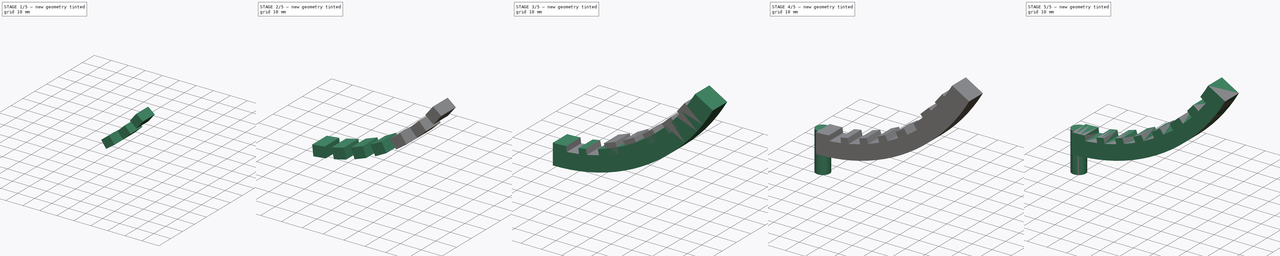
[diagram: build sequence overview — one tinted view per stage of 5, left to right]
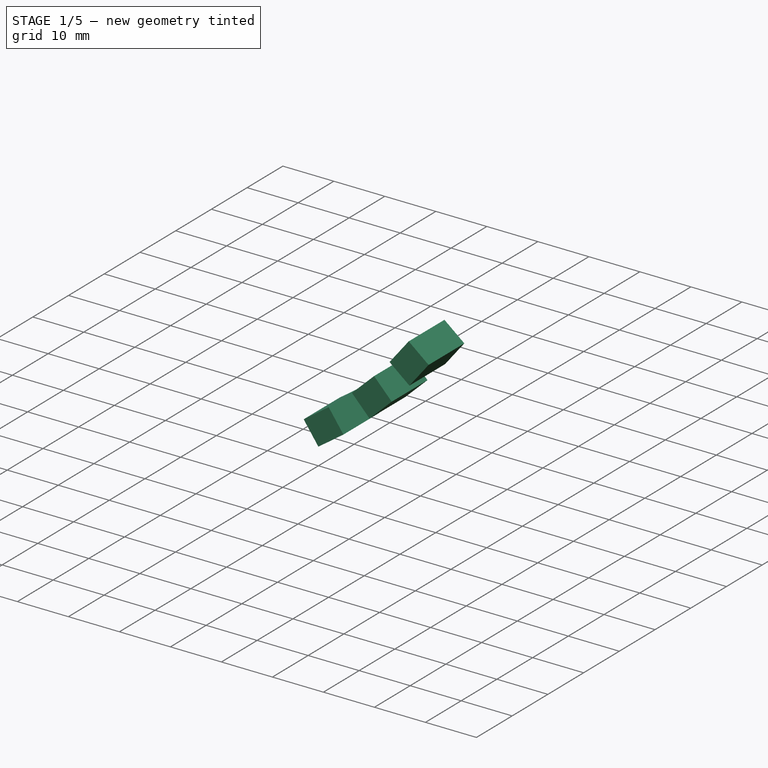
[diagram: stage 1 of 5 — iso view after this stage's code; geometry added in this stage tinted green]
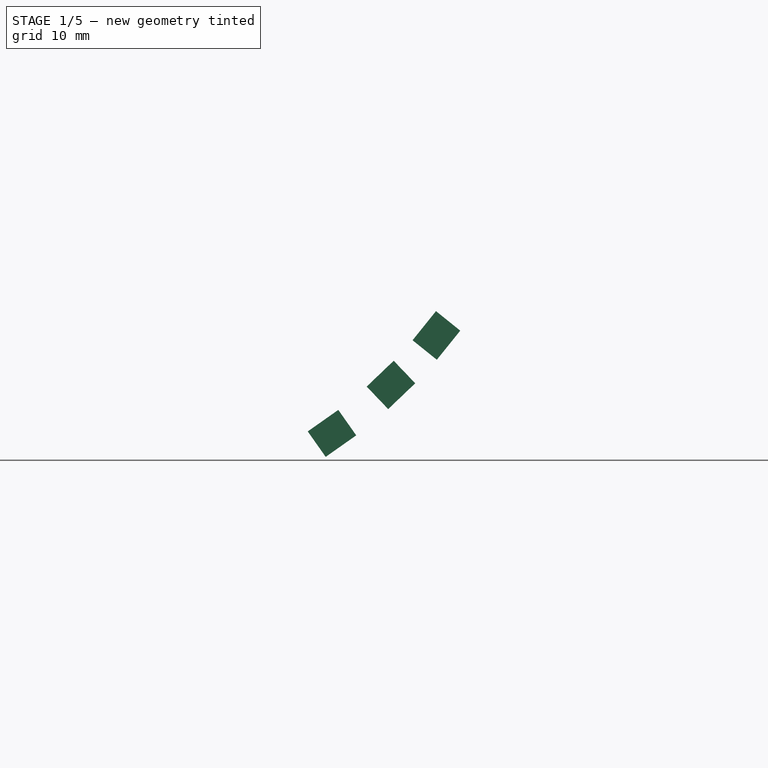
[diagram: stage 1 of 5 — front view after this stage's code; geometry added in this stage tinted green]
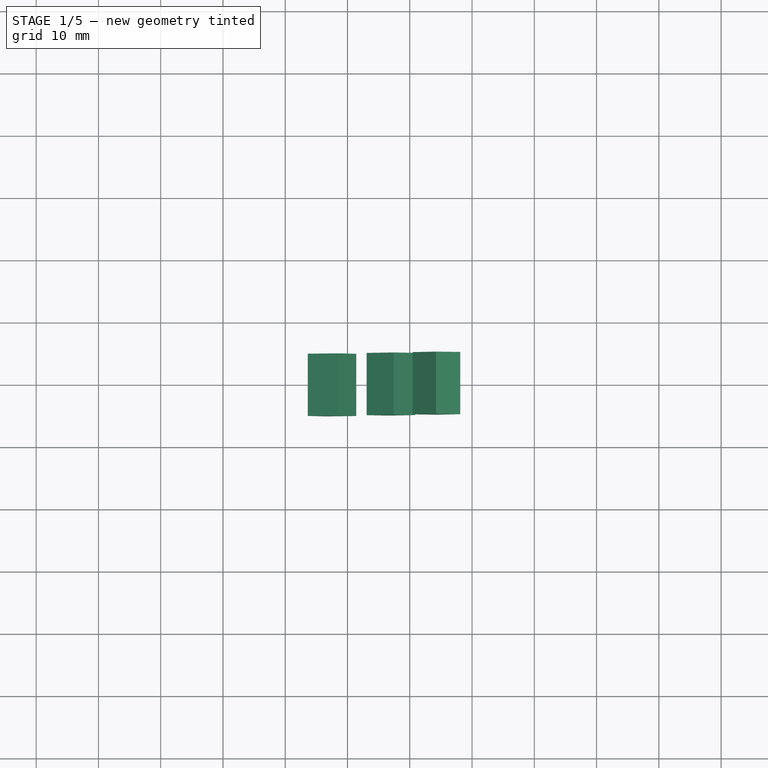
[diagram: stage 1 of 5 — top view after this stage's code; geometry added in this stage tinted green]
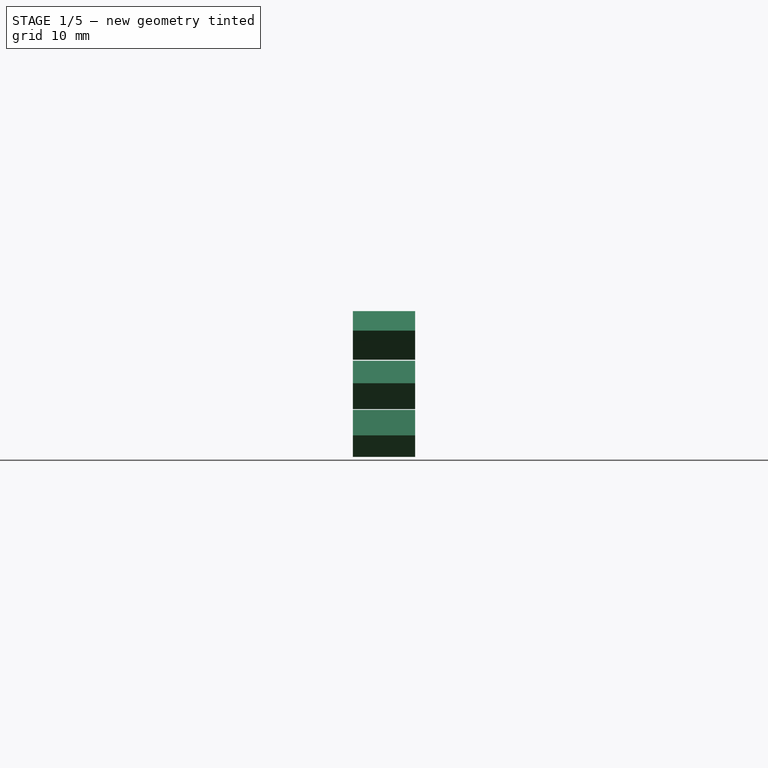
[diagram: stage 1 of 5 — right view after this stage's code; geometry added in this stage tinted green]
FCSTD DOCUMENT  (FreeCAD 0.18.4R)
Label: sketch_pcb_backup
License: All rights reserved
LicenseURL: http://en.wikipedia.org/wiki/All_rights_reserved
objects: Sketcher::SketchObject×11, Part::Extrusion×9, Part::Cut×7, Part::MultiFuse×1
note: 28 computed .brp shape members not serialized (recipe doc carries the construction recipe); baked Part::Feature solids carry a one-line shape summary decoded from their .brp

FEATURE [Sketcher::SketchObject] Sketch010
  sketch-geometry (4):
    g0: LineSegment StartX=-3 StartY=5 StartZ=0 EndX=3 EndY=5 EndZ=0
    g1: LineSegment StartX=3 StartY=5 StartZ=0 EndX=3 EndY=-5 EndZ=0
    g2: LineSegment StartX=3 StartY=-5 StartZ=0 EndX=-3 EndY=-5 EndZ=0
    g3: LineSegment StartX=-3 StartY=-5 StartZ=0 EndX=-3 EndY=5 EndZ=0
  constraints (12):
    c: Coincident(g0,g1)
    c: Coincident(g1,g2)
    c: Coincident(g2,g3)
    c: Coincident(g3,g0)
    c: Horizontal(g0)
    c: Horizontal(g2)
    c: Vertical(g1)
    c: Vertical(g3)
    c: Distance(g0) = 6
    c: Distance(g1) = 10
    c: Distance(g-1,g2) = 5
    c: Distance(g-1,g1) = 3
FEATURE [Part::Extrusion] Extrude011
  Base = -> Sketch010
  Dir = (0,0,1)
  DirMode = 2
  FaceMakerClass = Part::FaceMakerBullseye
  LengthFwd = 5
  LengthRev = 0
  Placement = pos=(47.5086,0,25.0524) rot=(0,-1,0;0.613658rad)
  Solid = true
  Symmetric = true
FEATURE [Sketcher::SketchObject] Sketch011
  sketch-geometry (4):
    g0: LineSegment StartX=-3 StartY=5 StartZ=0 EndX=3 EndY=5 EndZ=0
    g1: LineSegment StartX=3 StartY=5 StartZ=0 EndX=3 EndY=-5 EndZ=0
    g2: LineSegment StartX=3 StartY=-5 StartZ=0 EndX=-3 EndY=-5 EndZ=0
    g3: LineSegment StartX=-3 StartY=-5 StartZ=0 EndX=-3 EndY=5 EndZ=0
  constraints (12):
    c: Coincident(g0,g1)
    c: Coincident(g1,g2)
    c: Coincident(g2,g3)
    c: Coincident(g3,g0)
    c: Horizontal(g0)
    c: Horizontal(g2)
    c: Vertical(g1)
    c: Vertical(g3)
    c: Distance(g0) = 6
    c: Distance(g1) = 10
    c: Distance(g-1,g2) = 5
    c: Distance(g-1,g1) = 3
FEATURE [Part::Extrusion] Extrude012
  Base = -> Sketch011
  Dir = (0,0,1)
  DirMode = 2
  FaceMakerClass = Part::FaceMakerBullseye
  LengthFwd = 5
  LengthRev = 0
  Placement = pos=(56.977,0,32.8353) rot=(0,-1,0;0.76236rad)
  Solid = true
  Symmetric = true
FEATURE [Sketcher::SketchObject] Sketch012
  sketch-geometry (4):
    g0: LineSegment StartX=-3 StartY=5 StartZ=0 EndX=3 EndY=5 EndZ=0
    g1: LineSegment StartX=3 StartY=5 StartZ=0 EndX=3 EndY=-5 EndZ=0
    g2: LineSegment StartX=3 StartY=-5 StartZ=0 EndX=-3 EndY=-5 EndZ=0
    g3: LineSegment StartX=-3 StartY=-5 StartZ=0 EndX=-3 EndY=5 EndZ=0
  constraints (12):
    c: Coincident(g0,g1)
    c: Coincident(g1,g2)
    c: Coincident(g2,g3)
    c: Coincident(g3,g0)
    c: Horizontal(g0)
    c: Horizontal(g2)
    c: Vertical(g1)
    c: Vertical(g3)
    c: Distance(g0) = 6
    c: Distance(g1) = 10
    c: Distance(g-1,g2) = 5
    c: Distance(g-1,g1) = 3
FEATURE [Part::Extrusion] Extrude013
  Base = -> Sketch012
  Dir = (0,0,1)
  DirMode = 2
  FaceMakerClass = Part::FaceMakerBullseye
  LengthFwd = 5
  LengthRev = 0
  Placement = pos=(64.2773,0,40.7827) rot=(0,-1,0;0.89326rad)
  Solid = true
  Symmetric = true
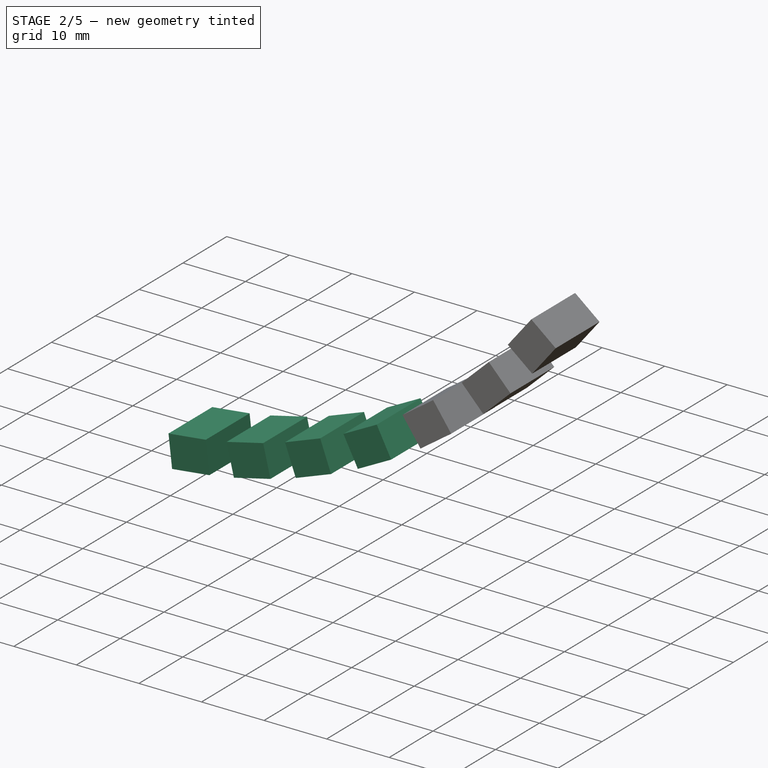
[diagram: stage 2 of 5 — iso view after this stage's code; geometry added in this stage tinted green]
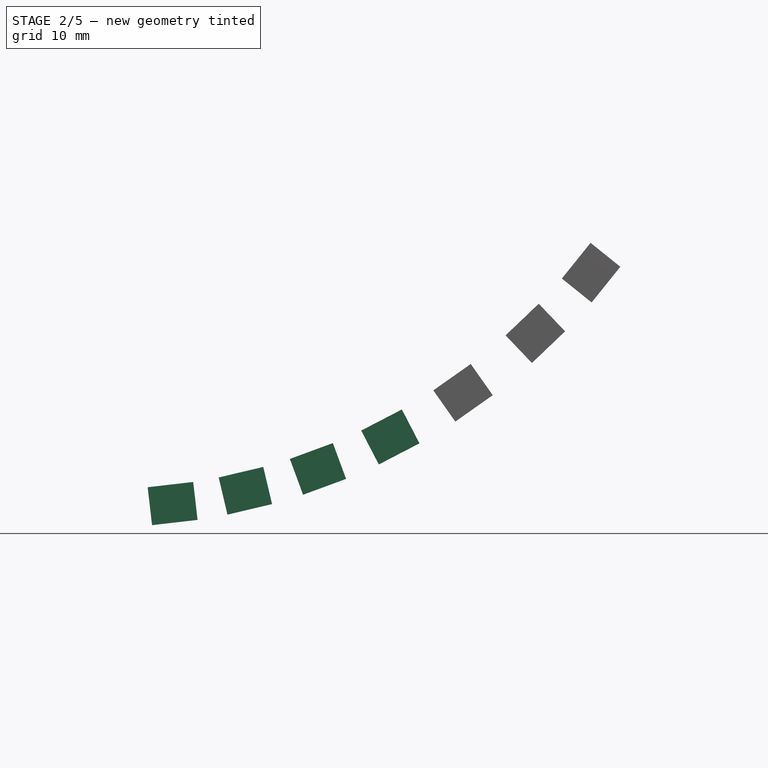
[diagram: stage 2 of 5 — front view after this stage's code; geometry added in this stage tinted green]
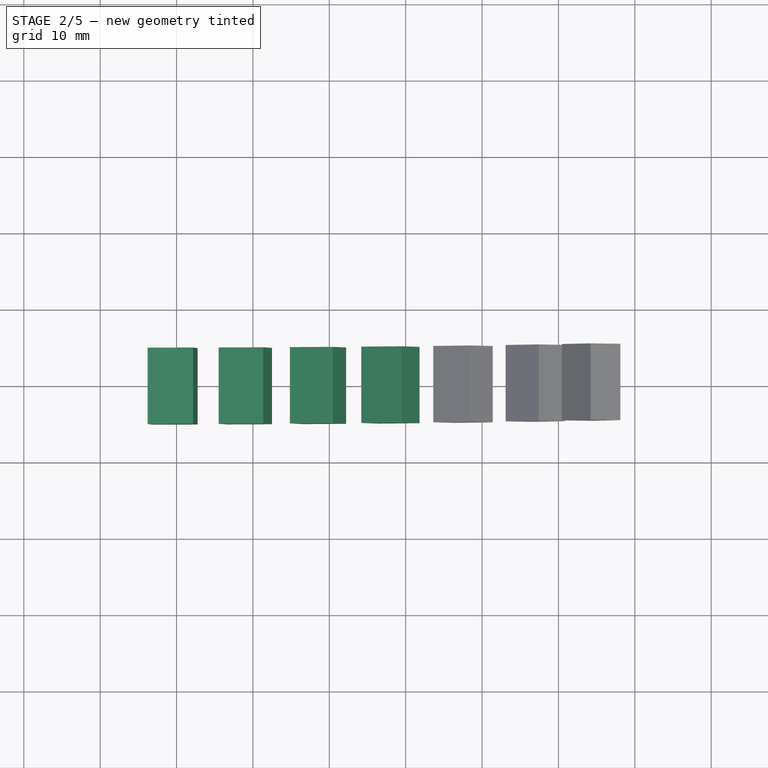
[diagram: stage 2 of 5 — top view after this stage's code; geometry added in this stage tinted green]
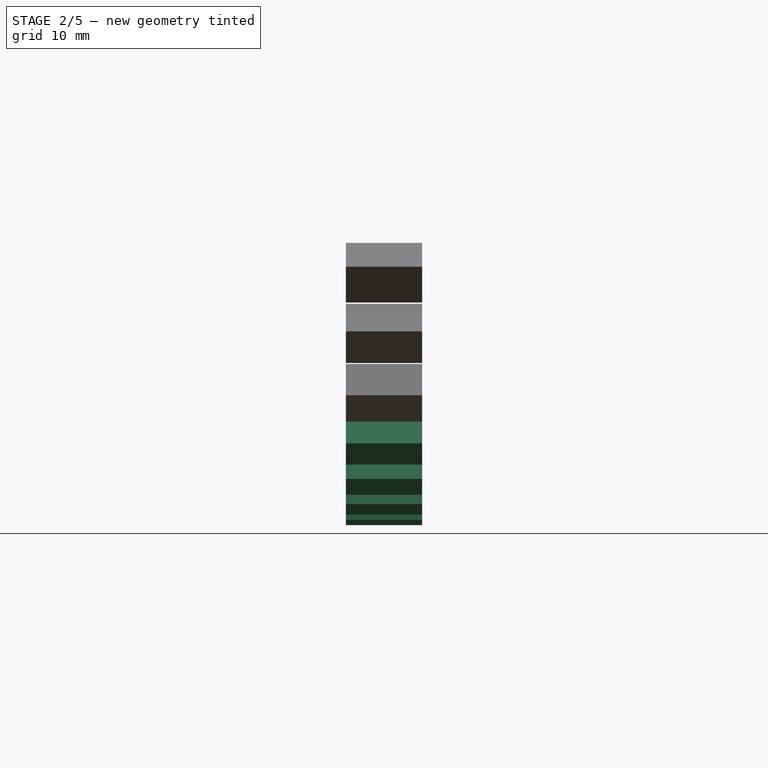
[diagram: stage 2 of 5 — right view after this stage's code; geometry added in this stage tinted green]
FEATURE [Sketcher::SketchObject] Sketch005
  sketch-geometry (4):
    g0: LineSegment StartX=-3 StartY=5 StartZ=0 EndX=3 EndY=5 EndZ=0
    g1: LineSegment StartX=3 StartY=5 StartZ=0 EndX=3 EndY=-5 EndZ=0
    g2: LineSegment StartX=3 StartY=-5 StartZ=0 EndX=-3 EndY=-5 EndZ=0
    g3: LineSegment StartX=-3 StartY=-5 StartZ=0 EndX=-3 EndY=5 EndZ=0
  constraints (12):
    c: Coincident(g0,g1)
    c: Coincident(g1,g2)
    c: Coincident(g2,g3)
    c: Coincident(g3,g0)
    c: Horizontal(g0)
    c: Horizontal(g2)
    c: Vertical(g1)
    c: Vertical(g3)
    c: Distance(g0) = 6
    c: Distance(g1) = 10
    c: Distance(g-1,g2) = 5
    c: Distance(g-1,g1) = 3
FEATURE [Part::Extrusion] Extrude006
  Base = -> Sketch005
  Dir = (0,0,1)
  DirMode = 2
  FaceMakerClass = Part::FaceMakerBullseye
  LengthFwd = 5
  LengthRev = 0
  Placement = pos=(9.48231,0,10.5467) rot=(0,-1,0;0.115192rad)
  Solid = true
  Symmetric = true
FEATURE [Sketcher::SketchObject] Sketch007
  sketch-geometry (4):
    g0: LineSegment StartX=-3 StartY=5 StartZ=0 EndX=3 EndY=5 EndZ=0
    g1: LineSegment StartX=3 StartY=5 StartZ=0 EndX=3 EndY=-5 EndZ=0
    g2: LineSegment StartX=3 StartY=-5 StartZ=0 EndX=-3 EndY=-5 EndZ=0
    g3: LineSegment StartX=-3 StartY=-5 StartZ=0 EndX=-3 EndY=5 EndZ=0
  constraints (12):
    c: Coincident(g0,g1)
    c: Coincident(g1,g2)
    c: Coincident(g2,g3)
    c: Coincident(g3,g0)
    c: Horizontal(g0)
    c: Horizontal(g2)
    c: Vertical(g1)
    c: Vertical(g3)
    c: Distance(g0) = 6
    c: Distance(g1) = 10
    c: Distance(g-1,g2) = 5
    c: Distance(g-1,g1) = 3
FEATURE [Part::Extrusion] Extrude008
  Base = -> Sketch007
  Dir = (0,0,1)
  DirMode = 2
  FaceMakerClass = Part::FaceMakerBullseye
  LengthFwd = 5
  LengthRev = 0
  Placement = pos=(19.0071,0,12.2194) rot=(0,-1,0;0.232478rad)
  Solid = true
  Symmetric = true
FEATURE [Sketcher::SketchObject] Sketch008
  sketch-geometry (4):
    g0: LineSegment StartX=-3 StartY=5 StartZ=0 EndX=3 EndY=5 EndZ=0
    g1: LineSegment StartX=3 StartY=5 StartZ=0 EndX=3 EndY=-5 EndZ=0
    g2: LineSegment StartX=3 StartY=-5 StartZ=0 EndX=-3 EndY=-5 EndZ=0
    g3: LineSegment StartX=-3 StartY=-5 StartZ=0 EndX=-3 EndY=5 EndZ=0
  constraints (12):
    c: Coincident(g0,g1)
    c: Coincident(g1,g2)
    c: Coincident(g2,g3)
    c: Coincident(g3,g0)
    c: Horizontal(g0)
    c: Horizontal(g2)
    c: Vertical(g1)
    c: Vertical(g3)
    c: Distance(g0) = 6
    c: Distance(g1) = 10
    c: Distance(g-1,g2) = 5
    c: Distance(g-1,g1) = 3
FEATURE [Part::Extrusion] Extrude009
  Base = -> Sketch008
  Dir = (0,0,1)
  DirMode = 2
  FaceMakerClass = Part::FaceMakerBullseye
  LengthFwd = 5
  LengthRev = 0
  Placement = pos=(28.5141,0,15.0843) rot=(0,-1,0;0.352906rad)
  Solid = true
  Symmetric = true
FEATURE [Sketcher::SketchObject] Sketch009
  sketch-geometry (4):
    g0: LineSegment StartX=-3 StartY=5 StartZ=0 EndX=3 EndY=5 EndZ=0
    g1: LineSegment StartX=3 StartY=5 StartZ=0 EndX=3 EndY=-5 EndZ=0
    g2: LineSegment StartX=3 StartY=-5 StartZ=0 EndX=-3 EndY=-5 EndZ=0
    g3: LineSegment StartX=-3 StartY=-5 StartZ=0 EndX=-3 EndY=5 EndZ=0
  constraints (12):
    c: Coincident(g0,g1)
    c: Coincident(g1,g2)
    c: Coincident(g2,g3)
    c: Coincident(g3,g0)
    c: Horizontal(g0)
    c: Horizontal(g2)
    c: Vertical(g1)
    c: Vertical(g3)
    c: Distance(g0) = 6
    c: Distance(g1) = 10
    c: Distance(g-1,g2) = 5
    c: Distance(g-1,g1) = 3
FEATURE [Part::Extrusion] Extrude010
  Base = -> Sketch009
  Dir = (0,0,1)
  DirMode = 2
  FaceMakerClass = Part::FaceMakerBullseye
  LengthFwd = 5
  LengthRev = 0
  Placement = pos=(37.992,0,19.2685) rot=(0,-1,0;0.478569rad)
  Solid = true
  Symmetric = true
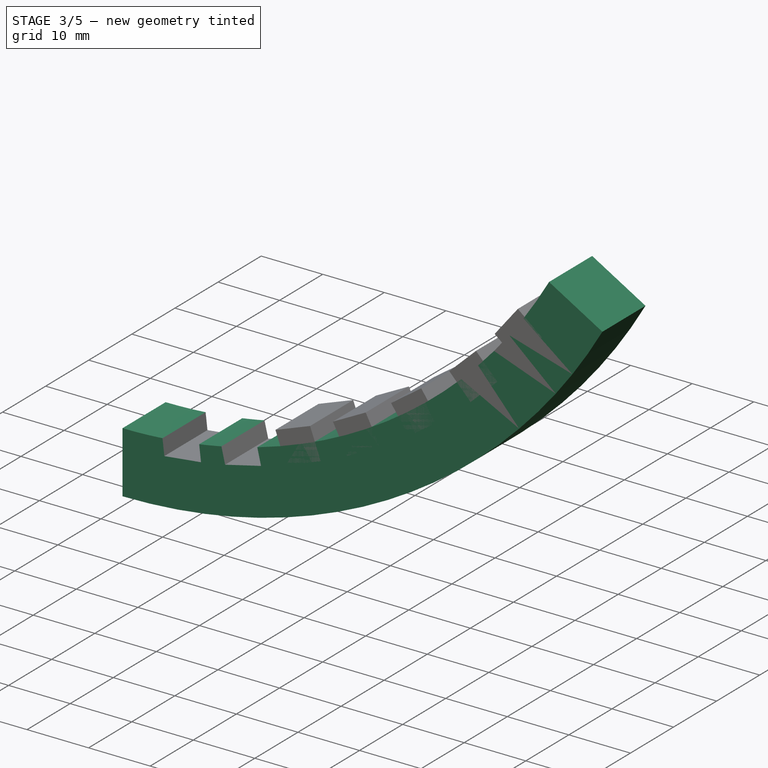
[diagram: stage 3 of 5 — iso view after this stage's code; geometry added in this stage tinted green]
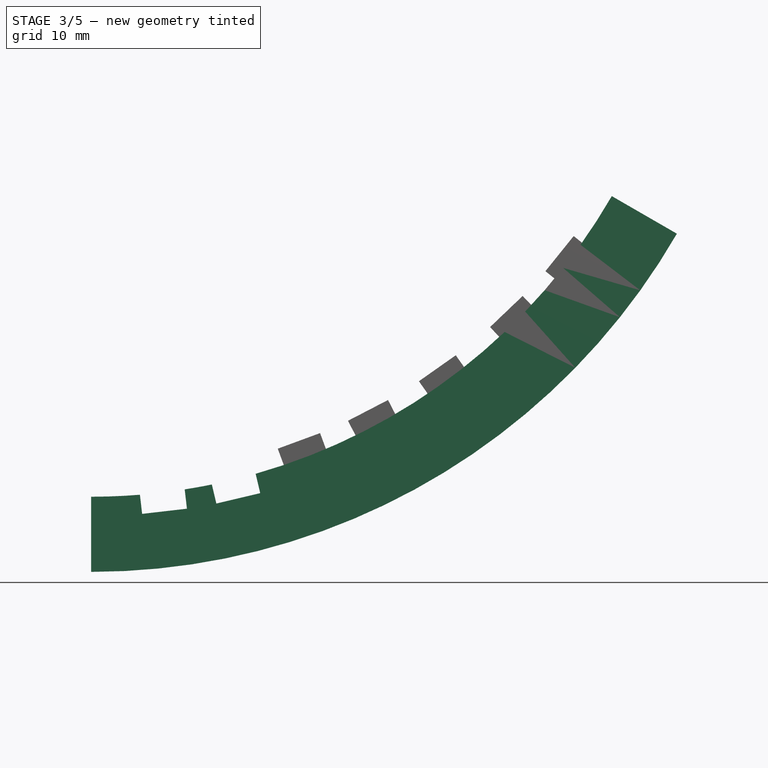
[diagram: stage 3 of 5 — front view after this stage's code; geometry added in this stage tinted green]
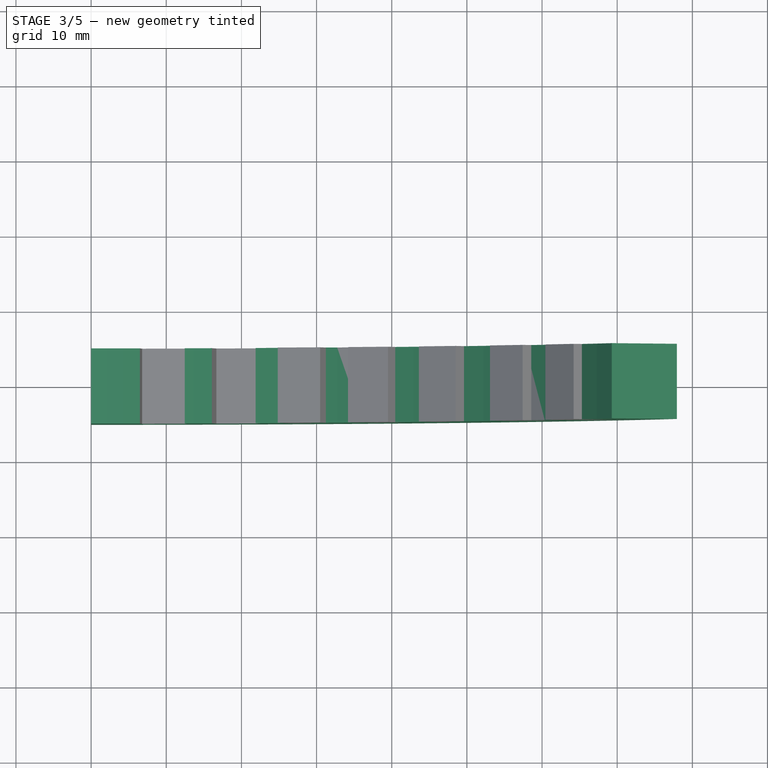
[diagram: stage 3 of 5 — top view after this stage's code; geometry added in this stage tinted green]
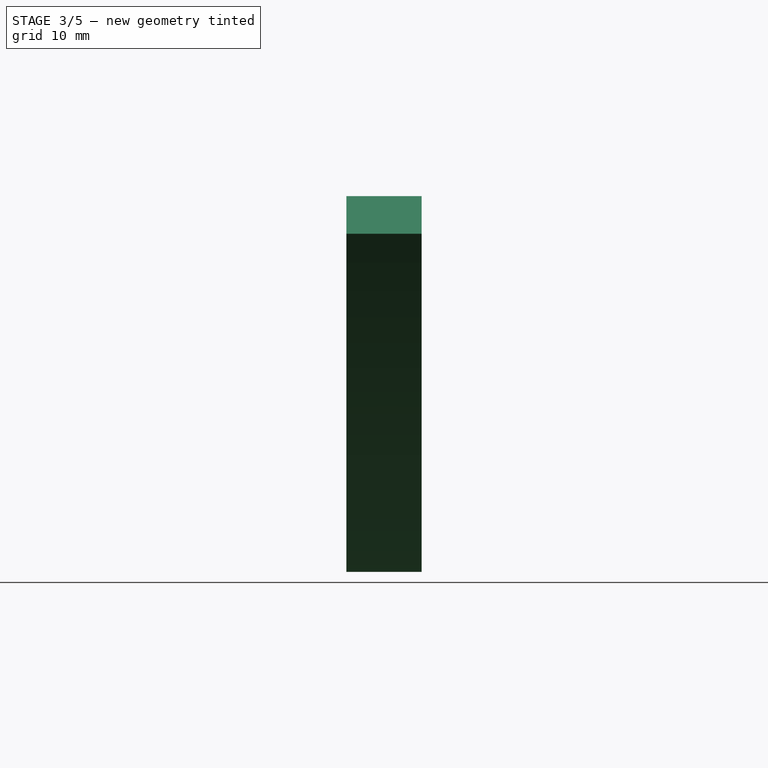
[diagram: stage 3 of 5 — right view after this stage's code; geometry added in this stage tinted green]
FEATURE [Sketcher::SketchObject] Sketch002
  Placement = pos=(0,0,0) rot=(1,0,0;1.5708rad)
  sketch-geometry (9):
    g0: ArcOfCircle CenterX=7.1888e-05 CenterY=90 CenterZ=0 NormalX=0 NormalY=0 NormalZ=1 AngleXU=0 Radius=90 StartAngle=4.71239 EndAngle=5.75959
    g1: LineSegment [constr] StartX=7.1888e-05 StartY=90 StartZ=0 EndX=77.9423 EndY=44.9999 EndZ=0
    g2: LineSegment [constr] StartX=7.1888e-05 StartY=90 StartZ=0 EndX=3.4e-14 EndY=0 EndZ=0
    g3: LineSegment [constr] StartX=3.4e-14 StartY=0 StartZ=0 EndX=50 EndY=0 EndZ=0
    g4: ArcOfCircle CenterX=7.1888e-05 CenterY=90 CenterZ=0 NormalX=0 NormalY=0 NormalZ=1 AngleXU=0 Radius=80 StartAngle=4.71239 EndAngle=5.75959
    g5: LineSegment [constr] StartX=3.4e-14 StartY=0 StartZ=0 EndX=3.4e-14 EndY=10 EndZ=0
    g6: LineSegment [constr] StartX=7.1888e-05 StartY=90 StartZ=0 EndX=69.2821 EndY=49.9999 EndZ=0
    g7: LineSegment StartX=69.2821 StartY=49.9999 StartZ=0 EndX=77.9423 EndY=44.9999 EndZ=0
    g8: LineSegment StartX=3.4e-14 StartY=10 StartZ=0 EndX=3.4e-14 EndY=0 EndZ=0
  constraints (24):
    c: Coincident(g-1,g0)
    c: Coincident(g1,g0)
    c: Coincident(g1,g0)
    c: Coincident(g2,g0)
    c: Coincident(g0,g2)
    c: Angle(g2,g1) = 1.0472
    c: Coincident(g3,g0)
    c: Horizontal(g3)
    c: Tangent(g0,g3)
    c: DistanceY(g2,g2) = 90
    c: Distance(g3) = 50
    c: Vertical(g5)
    c: DistanceY(g5,g5) = 10
    c: Coincident(g5,g0)
    c: Coincident(g4,g5)
    c: Coincident(g6,g0)
    c: Distance(g6) = 80
    c: Angle(g2,g6) = 1.0472
    c: Coincident(g4,g6)
    c: Coincident(g7,g4)
    c: Coincident(g0,g7)
    c: Coincident(g4,g8)
    c: Coincident(g8,g0)
    c: Radius(g4) = 80
FEATURE [Part::Extrusion] Extrude002
  Base = -> Sketch002
  Dir = (0,1,0)
  DirMode = 0
  FaceMakerClass = Part::FaceMakerBullseye
  LengthFwd = 10
  LengthRev = 0
  Solid = true
  Symmetric = true
FEATURE [Part::Cut] Cut
  Base = -> Extrude002
  Tool = -> Extrude006
FEATURE [Part::Cut] Cut001
  Base = -> Cut
  Tool = -> Extrude008
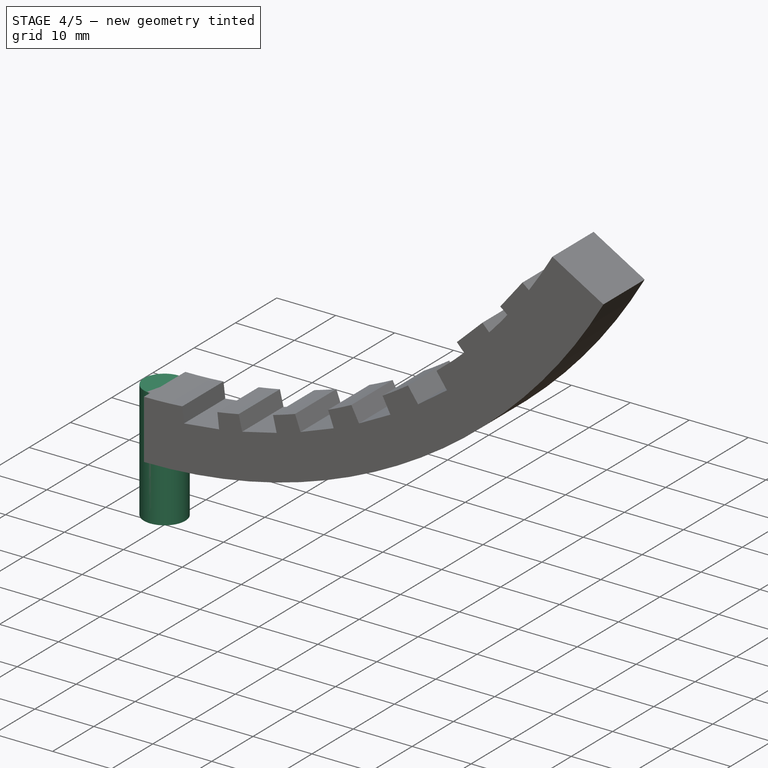
[diagram: stage 4 of 5 — iso view after this stage's code; geometry added in this stage tinted green]
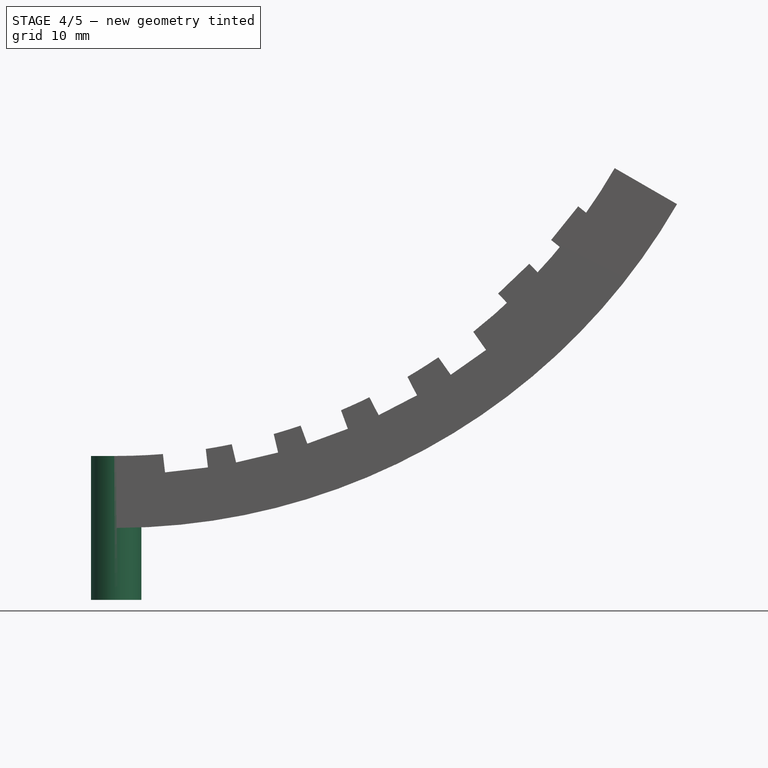
[diagram: stage 4 of 5 — front view after this stage's code; geometry added in this stage tinted green]
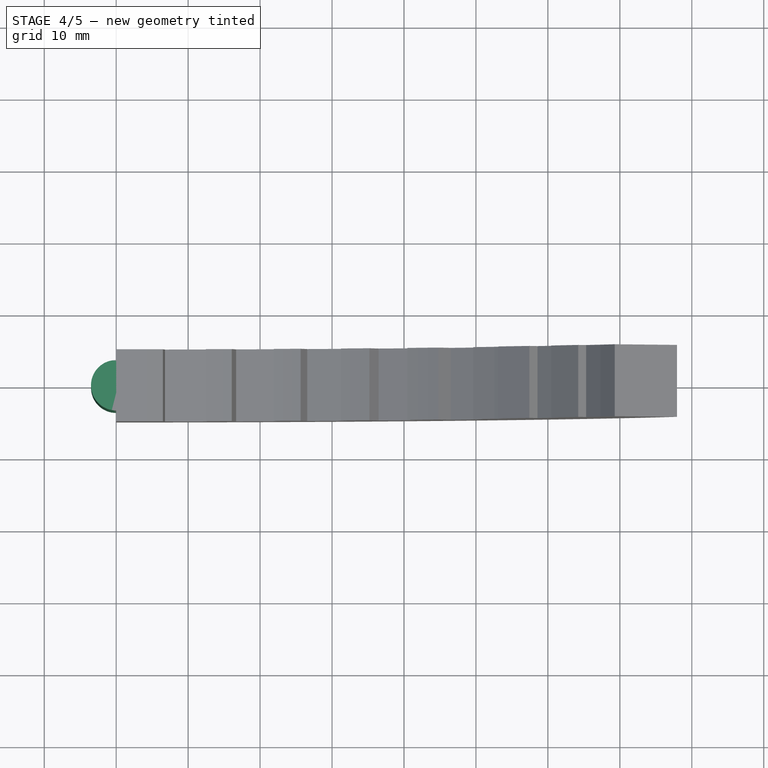
[diagram: stage 4 of 5 — top view after this stage's code; geometry added in this stage tinted green]
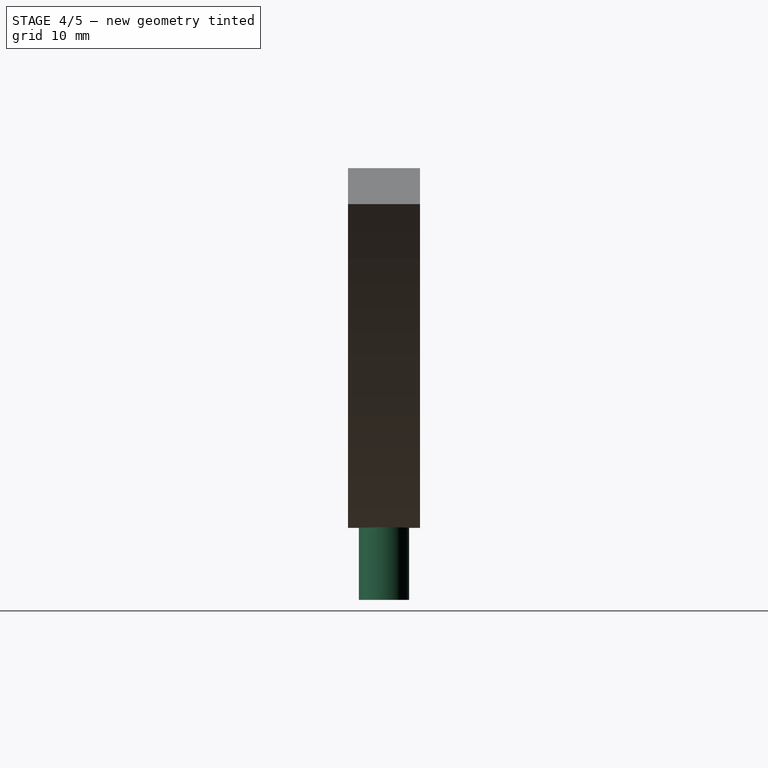
[diagram: stage 4 of 5 — right view after this stage's code; geometry added in this stage tinted green]
FEATURE [Sketcher::SketchObject] Sketch  label="pcb"
  Placement = pos=(0,0,0) rot=(1,0,0;1.5708rad)
  sketch-geometry (13):
    g0: LineSegment [constr] StartX=-100 StartY=90 StartZ=0 EndX=0 EndY=90 EndZ=0
    g1: LineSegment [constr] StartX=0 StartY=0 StartZ=0 EndX=0 EndY=90 EndZ=0
    g2: LineSegment StartX=16.6856 StartY=1.86556 StartZ=0 EndX=16.6856 EndY=-0.874439 EndZ=0
    g3: ArcOfCircle CenterX=0 CenterY=90 CenterZ=0 NormalX=0 NormalY=0 NormalZ=1 AngleXU=0 Radius=81 StartAngle=4.79058 EndAngle=5.67564
    g4: ArcOfCircle CenterX=0 CenterY=90 CenterZ=0 NormalX=0 NormalY=0 NormalZ=1 AngleXU=0 Radius=98 StartAngle=5.09608 EndAngle=5.67564
    g5: LineSegment StartX=66.505 StartY=43.7606 StartZ=0 EndX=80.4629 EndY=34.056 EndZ=0
    g6: LineSegment StartX=16.6856 StartY=-0.874439 StartZ=0 EndX=36.6856 EndY=-0.874439 EndZ=0
    g7: LineSegment StartX=6.327 StartY=9.24748 StartZ=0 EndX=6.327 EndY=0.523416 EndZ=0
    g8: ArcOfCircle CenterX=0 CenterY=90 CenterZ=0 NormalX=0 NormalY=0 NormalZ=1 AngleXU=0 Radius=89.7 StartAngle=4.78298 EndAngle=4.89949
    g9: GeomPoint X=16.69 Y=9.04 Z=0
    g10: LineSegment [constr] StartX=0 StartY=90 StartZ=0 EndX=66.505 EndY=43.7606 EndZ=0
    g11: LineSegment [constr] StartX=0 StartY=90 StartZ=0 EndX=80.4629 EndY=34.056 EndZ=0
    g12: LineSegment [constr] StartX=0 StartY=90 StartZ=0 EndX=6.327 EndY=9.24748 EndZ=0
  constraints (35):
    c: Horizontal(g0)
    c: DistanceX(g0,g0) = 100
    c: Coincident(g1,g-1)
    c: Vertical(g1)
    c: Distance(g1) = 90
    c: Vertical(g2)
    c: Coincident(g5,g3)
    c: Coincident(g5,g4)
    c: Coincident(g3,g4)
    c: Coincident(g7,g3)
    c: Coincident(g7,g8)
    c: Coincident(g8,g2)
    c: Coincident(g2,g6)
    c: Coincident(g6,g4)
    c: Horizontal(g6)
    c: Vertical(g7)
    c: Coincident(g8,g3)
    c: Radius(g3) = 81
    c: Radius(g4) = 98
    c: Coincident(g0,g1)
    c: Coincident(g3,g0)
    c: Distance(g6) = 20
    c: Distance(g2) = 2.74
    c: DistanceY(g9,g3) = 80.96
    c: DistanceX(g3,g9) = 16.69
    c: Radius(g8) = 89.7
    c: Coincident(g10,g3)
    c: Coincident(g10,g3)
    c: Coincident(g11,g3)
    c: Coincident(g11,g4)
    c: Parallel(g10,g11)
    c: Angle(g1,g10) = 0.963247
    c: Coincident(g12,g3)
    c: Coincident(g12,g3)
    c: Angle(g12,g10) = 0.885056
FEATURE [Sketcher::SketchObject] Sketch001
  sketch-geometry (1):
    g0: Circle CenterX=0 CenterY=0 CenterZ=0 NormalX=0 NormalY=0 NormalZ=1 AngleXU=0 Radius=3.5
  constraints (2):
    c: Coincident(g0,g-1)
    c: Radius(g0) = 3.5
FEATURE [Part::Extrusion] Extrude001
  Base = -> Sketch001
  Dir = (0,0,1)
  DirMode = 0
  FaceMakerClass = Part::FaceMakerBullseye
  LengthFwd = 20
  LengthRev = 0
  Solid = true
  Symmetric = true
FEATURE [Part::Cut] Cut002
  Base = -> Cut001
  Tool = -> Extrude009
FEATURE [Part::Cut] Cut003
  Base = -> Cut002
  Tool = -> Extrude010
FEATURE [Part::Cut] Cut004
  Base = -> Cut003
  Tool = -> Extrude011
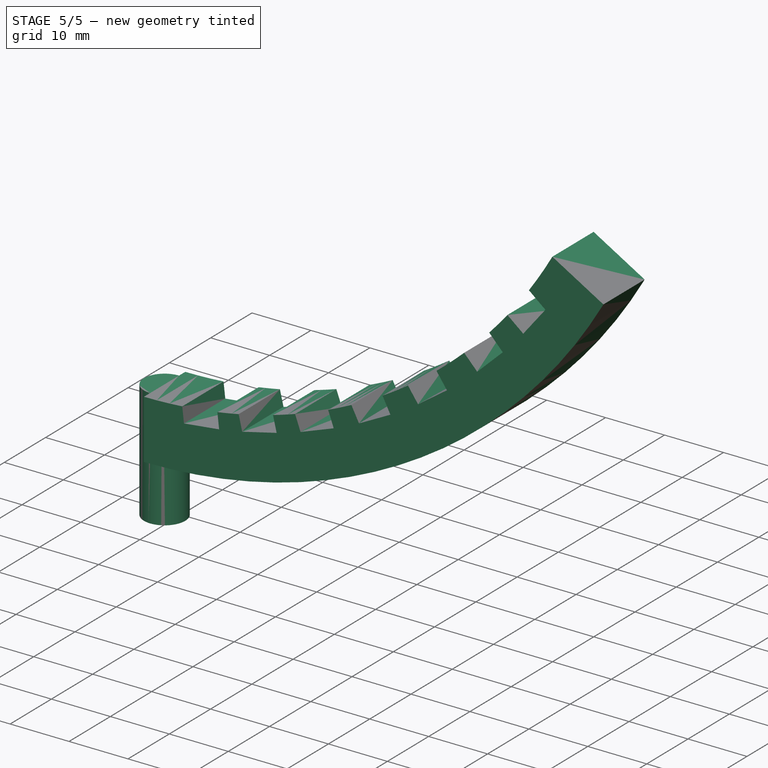
[diagram: stage 5 of 5 — iso view after this stage's code; geometry added in this stage tinted green]
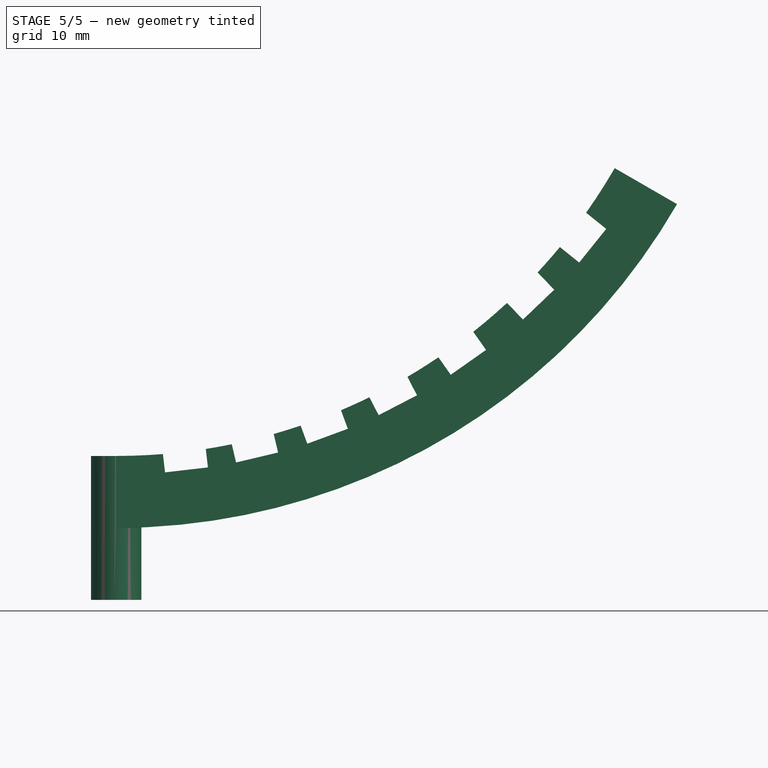
[diagram: stage 5 of 5 — front view after this stage's code; geometry added in this stage tinted green]
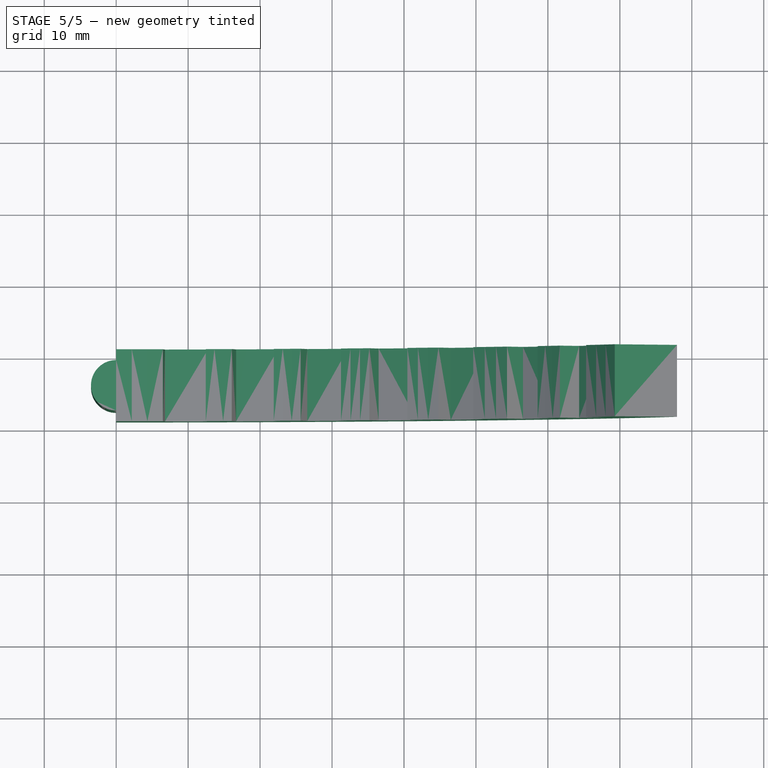
[diagram: stage 5 of 5 — top view after this stage's code; geometry added in this stage tinted green]
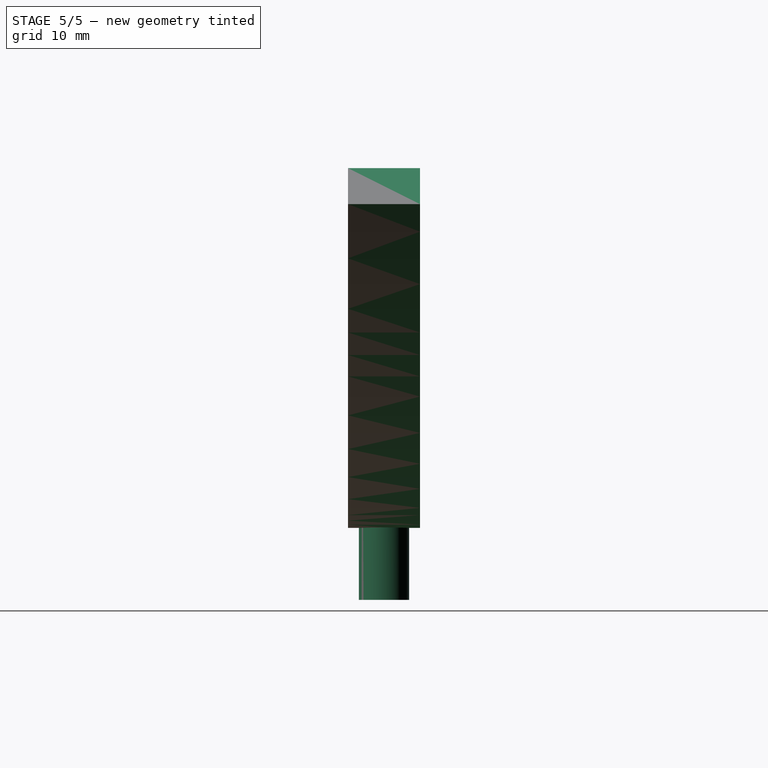
[diagram: stage 5 of 5 — right view after this stage's code; geometry added in this stage tinted green]
FEATURE [Part::Cut] Cut005
  Base = -> Cut004
  Tool = -> Extrude012
FEATURE [Part::Cut] Cut006
  Base = -> Cut005
  Tool = -> Extrude013
FEATURE [Part::MultiFuse] Fusion
  Placement = pos=(0,6,0) rot=(0,0,1;0rad)
  Shapes = -> [Cut006,Extrude001]
FEATURE [Sketcher::SketchObject] Sketch013  label="pistas"
  Placement = pos=(0,0,0) rot=(-1,0,0;4.71239rad)
  sketch-geometry (44):
    g0: LineSegment StartX=18 StartY=0.99 StartZ=0 EndX=18 EndY=-0.84 EndZ=0
    g1: LineSegment StartX=21 StartY=0.985324 StartZ=0 EndX=21 EndY=-0.844676 EndZ=0
    g2: LineSegment [constr] StartX=18 StartY=0.99 StartZ=0 EndX=21 EndY=0.985324 EndZ=0
    g3: LineSegment StartX=24 StartY=0.980648 StartZ=0 EndX=24 EndY=-0.849352 EndZ=0
    g4: LineSegment [constr] StartX=21 StartY=0.985324 StartZ=0 EndX=24 EndY=0.980648 EndZ=0
    g5: LineSegment StartX=27 StartY=0.975971 StartZ=0 EndX=27 EndY=-0.854029 EndZ=0
    g6: LineSegment [constr] StartX=24 StartY=0.980648 StartZ=0 EndX=27 EndY=0.975971 EndZ=0
    g7: LineSegment StartX=30 StartY=0.971295 StartZ=0 EndX=30 EndY=-0.858705 EndZ=0
    g8: LineSegment [constr] StartX=27 StartY=0.975971 StartZ=0 EndX=30 EndY=0.971295 EndZ=0
    g9: LineSegment StartX=33 StartY=0.966619 StartZ=0 EndX=33 EndY=-0.863381 EndZ=0
    g10: LineSegment [constr] StartX=30 StartY=0.971295 StartZ=0 EndX=33 EndY=0.966619 EndZ=0
    g11: LineSegment StartX=36 StartY=0.961943 StartZ=0 EndX=36 EndY=-0.868057 EndZ=0
    g12: LineSegment [constr] StartX=33 StartY=0.966619 StartZ=0 EndX=36 EndY=0.961943 EndZ=0
    g13: LineSegment StartX=9.70301 StartY=9.58326 StartZ=0 EndX=10.3779 EndY=3.98973 EndZ=0
    g14: LineSegment StartX=10.3779 StartY=3.98973 StartZ=0 EndX=18 EndY=3.98973 EndZ=0
    g15: LineSegment StartX=18 StartY=3.98973 StartZ=0 EndX=18 EndY=0.99 EndZ=0
    g16: LineSegment StartX=19.2114 StartY=11.3112 StartZ=0 EndX=21 EndY=3.98505 EndZ=0
    g17: LineSegment StartX=21 StartY=3.98505 StartZ=0 EndX=21 EndY=0.985324 EndZ=0
    g18: LineSegment StartX=28.9486 StartY=14.3496 StartZ=0 EndX=30.7355 EndY=9.67985 EndZ=0
    g19: LineSegment StartX=38.3638 StartY=18.6612 StartZ=0 EndX=41.916 EndY=12.0558 EndZ=0
    g20: LineSegment StartX=47.9986 StartY=24.7533 StartZ=0 EndX=53.9244 EndY=16.6982 EndZ=0
    g21: LineSegment StartX=57.2657 StartY=32.7144 StartZ=0 EndX=66.1029 EndY=23.874 EndZ=0
    g22: LineSegment StartX=64.1668 StartY=40.567 StartZ=0 EndX=76.0496 EndY=31.4128 EndZ=0
    g23: LineSegment [constr] StartX=0 StartY=90 StartZ=0 EndX=0 EndY=0 EndZ=0
    g24: ArcOfCircle [constr] CenterX=0 CenterY=90 CenterZ=0 NormalX=0 NormalY=0 NormalZ=1 AngleXU=0 Radius=81 StartAngle=4.7911 EndAngle=5.67616
    g25: LineSegment [constr] StartX=0 StartY=90 StartZ=0 EndX=6.36928 EndY=9.25081 EndZ=0
    g26: LineSegment [constr] StartX=0 StartY=90 StartZ=0 EndX=66.5292 EndY=43.7954 EndZ=0
    g27: ArcOfCircle CenterX=0 CenterY=90 CenterZ=0 NormalX=0 NormalY=0 NormalZ=1 AngleXU=0 Radius=96 StartAngle=5.10567 EndAngle=5.62677
    g28: LineSegment [constr] StartX=0 StartY=90 StartZ=0 EndX=64.1668 EndY=40.567 EndZ=0
    g29: LineSegment StartX=36.7888 StartY=1.3288 StartZ=0 EndX=36 EndY=0.961943 EndZ=0
    g30: LineSegment [constr] StartX=0 StartY=90 StartZ=0 EndX=57.2657 EndY=32.7144 EndZ=0
    g31: ArcOfCircle CenterX=0 CenterY=90 CenterZ=0 NormalX=0 NormalY=0 NormalZ=1 AngleXU=0 Radius=93.5 StartAngle=5.0731 EndAngle=5.49761
    g32: LineSegment StartX=33 StartY=2.51714 StartZ=0 EndX=33 EndY=0.966619 EndZ=0
    g33: LineSegment [constr] StartX=0 StartY=90 StartZ=0 EndX=47.9986 EndY=24.7533 EndZ=0
    g34: ArcOfCircle CenterX=0 CenterY=90 CenterZ=0 NormalX=0 NormalY=0 NormalZ=1 AngleXU=0 Radius=91 StartAngle=5.04834 EndAngle=5.34664
    g35: LineSegment StartX=30 StartY=4.08725 StartZ=0 EndX=30 EndY=0.971295 EndZ=0
    g36: ArcOfCircle CenterX=0 CenterY=90 CenterZ=0 NormalX=0 NormalY=0 NormalZ=1 AngleXU=0 Radius=88.5 StartAngle=5.02242 EndAngle=5.20579
    g37: LineSegment [constr] StartX=0 StartY=90 StartZ=0 EndX=38.3638 EndY=18.6612 EndZ=0
    g38: LineSegment StartX=27 StartY=5.71922 StartZ=0 EndX=27 EndY=0.975971 EndZ=0
    g39: ArcOfCircle CenterX=0 CenterY=90 CenterZ=0 NormalX=0 NormalY=0 NormalZ=1 AngleXU=0 Radius=86 StartAngle=4.99521 EndAngle=5.07786
    g40: LineSegment [constr] StartX=0 StartY=90 StartZ=0 EndX=28.9486 EndY=14.3496 EndZ=0
    g41: LineSegment StartX=24 StartY=7.41671 StartZ=0 EndX=24 EndY=0.980648 EndZ=0
    g42: LineSegment [constr] StartX=0 StartY=90 StartZ=0 EndX=19.2114 EndY=11.3112 EndZ=0
    g43: LineSegment [constr] StartX=0 StartY=90 StartZ=0 EndX=9.70301 EndY=9.58326 EndZ=0
  constraints (125):
    c: Vertical(g0)
    c: Distance(g0) = 1.83
    c: Vertical(g1)
    c: Equal(g0,g1) = 1.83
    c: Coincident(g0,g2)
    c: Coincident(g1,g2)
    c: Distance(g2) = 3
    c: Angle(g2) = -0.00155873
    c: Vertical(g3)
    c: Equal(g0,g3) = 1.83
    c: Coincident(g1,g4)
    c: Coincident(g3,g4)
    c: Equal(g2,g4)
    c: Parallel(g4,g2)
    c: Vertical(g5)
    c: Equal(g0,g5) = 1.83
    c: Coincident(g3,g6)
    c: Coincident(g5,g6)
    c: Equal(g2,g6)
    c: Parallel(g6,g2)
    c: Vertical(g7)
    c: Equal(g0,g7) = 1.83
    c: Coincident(g5,g8)
    c: Coincident(g7,g8)
    c: Equal(g2,g8)
    c: Parallel(g8,g2)
    c: Vertical(g9)
    c: Equal(g0,g9) = 1.83
    c: Coincident(g7,g10)
    c: Coincident(g9,g10)
    c: Equal(g2,g10)
    c: Parallel(g10,g2)
    c: Vertical(g11)
    c: Equal(g0,g11) = 1.83
    c: Coincident(g9,g12)
    c: Coincident(g11,g12)
    c: Equal(g2,g12)
    c: Parallel(g12,g2)
    c: Coincident(g15,g0)
    c: Coincident(g14,g15)
    c: Coincident(g14,g13)
    c: Vertical(g15)
    c: DistanceY(g0,g-1) = 0.84
    c: DistanceX(g-1,g0) = 18
    c: Coincident(g17,g1)
    c: Coincident(g16,g17)
    c: Vertical(g17)
    c: Coincident(g23,g-1)
    c: Vertical(g23)
    c: Distance(g23) = 90
    c: Coincident(g24,g23)
    c: Coincident(g25,g23)
    c: Coincident(g26,g23)
    c: Coincident(g25,g24)
    c: Coincident(g26,g24)
    c: Angle(g25,g26) = 0.885056
    c: Radius(g24) = 81
    c: Coincident(g27,g23)
    c: Radius(g27) = 96
    c: Coincident(g28,g27)
    c: Coincident(g28,g22)
    c: Equal(g28,g26)
    c: Angle(g28,g26) = 0.0493928
    c: Parallel(g28,g22)
    c: Angle(g23,g25) = 0.0787143
    c: Coincident(g27,g22)
    c: Coincident(g27,g29)
    c: Coincident(g11,g29)
    c: Coincident(g30,g27)
    c: Equal(g26,g30)
    c: Coincident(g30,g21)
    c: Parallel(g21,g30)
    c: Coincident(g31,g27)
    c: Radius(g31) = 93.5
    c: Coincident(g21,g31)
    c: Angle(g30,g26) = 0.178547
    c: Coincident(g32,g31)
    c: Coincident(g9,g32)
    c: Vertical(g32)
    c: Coincident(g33,g27)
    c: Coincident(g33,g20)
    c: Equal(g33,g26)
    c: Angle(g33,g26) = 0.329518
    c: Parallel(g33,g20)
    c: Coincident(g27,g34)
    c: Radius(g34) = 91
    c: Coincident(g20,g34)
    c: Coincident(g34,g35)
    c: Coincident(g35,g7)
    c: Vertical(g35)
    c: Coincident(g27,g36)
    c: Coincident(g27,g37)
    c: Equal(g37,g26)
    c: Angle(g37,g26) = 0.470366
    c: Coincident(g37,g19)
    c: Parallel(g37,g19)
    c: Radius(g36) = 88.5
    c: Coincident(g19,g36)
    c: Coincident(g36,g38)
    c: Coincident(g38,g5)
    c: Vertical(g38)
    c: Coincident(g39,g27)
    c: Coincident(g27,g40)
    c: Equal(g40,g26)
    c: Angle(g40,g26) = 0.598299
    c: Coincident(g40,g18)
    c: Parallel(g40,g18)
    c: Radius(g39) = 86
    c: Coincident(g18,g39)
    c: Coincident(g39,g41)
    c: Coincident(g41,g3)
    c: Vertical(g41)
    c: Coincident(g27,g42)
    c: Equal(g42,g26)
    c: Angle(g42,g26) = 0.724312
    c: Coincident(g42,g16)
    c: Coincident(g27,g43)
    c: Equal(g43,g26)
    c: Angle(g43,g26) = 0.843692
    c: Coincident(g43,g13)
    c: Parallel(g16,g42)
    c: Parallel(g43,g13)
    c: Horizontal(g14)
    c: Equal(g15,g17)
    c: Distance(g29) = 0.87
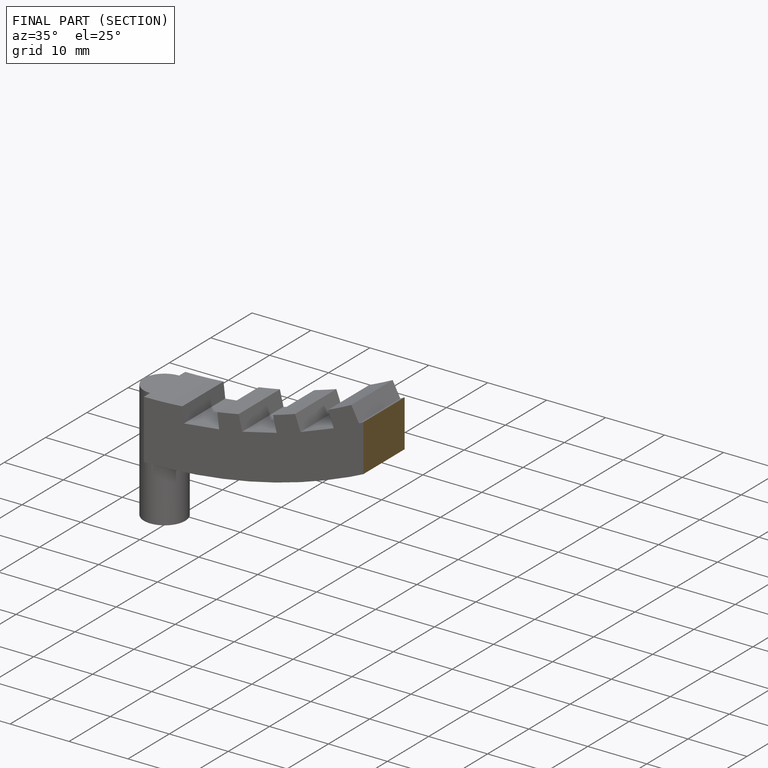
[diagram: finished part — half-section view (interior)]
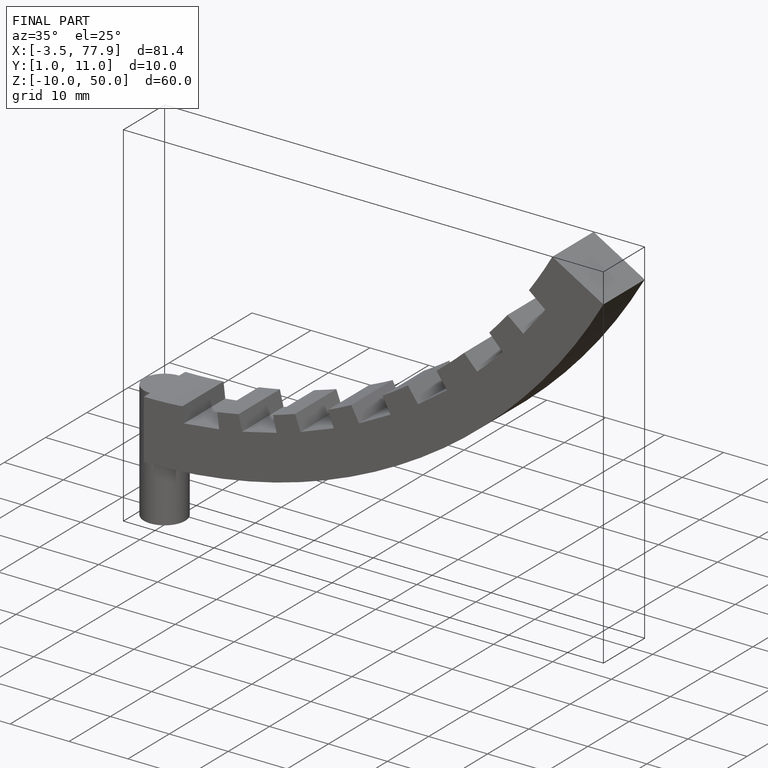
[diagram: finished part — iso view with bounding-box wireframe]
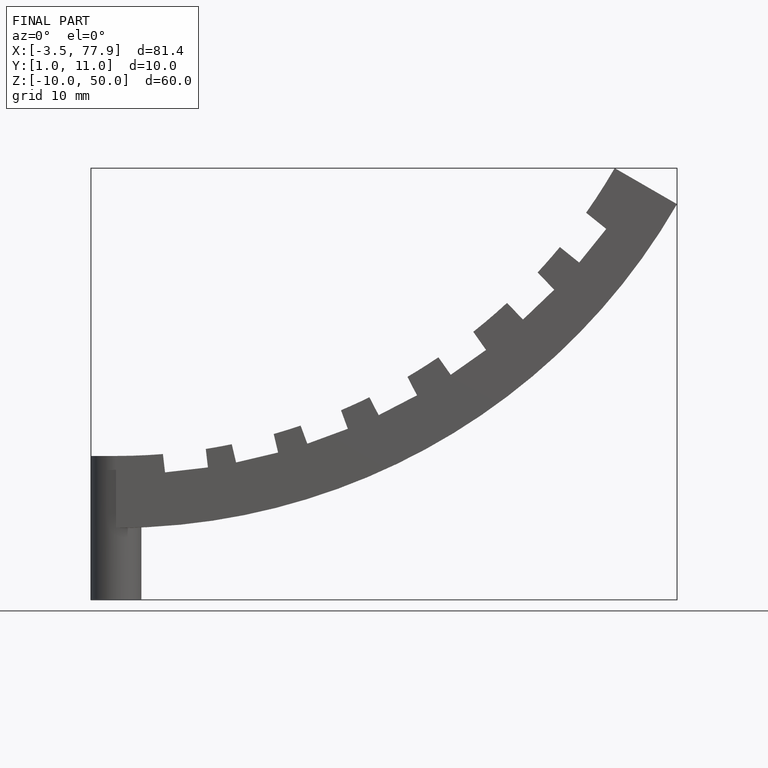
[diagram: finished part — front view with bounding-box wireframe]
